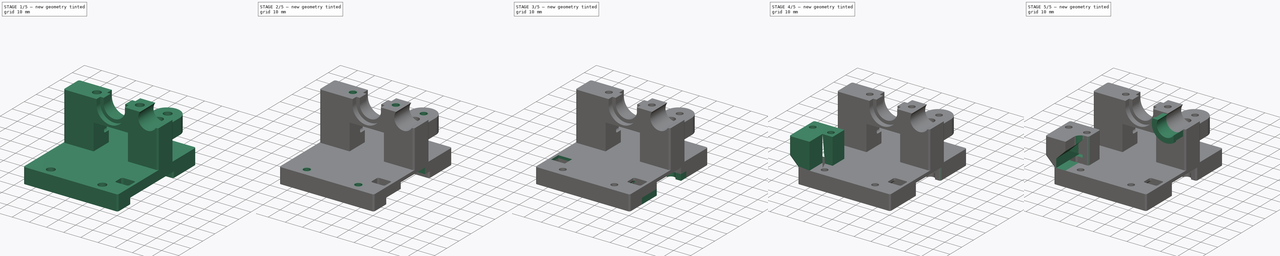
[diagram: build sequence overview — one tinted view per stage of 5, left to right]
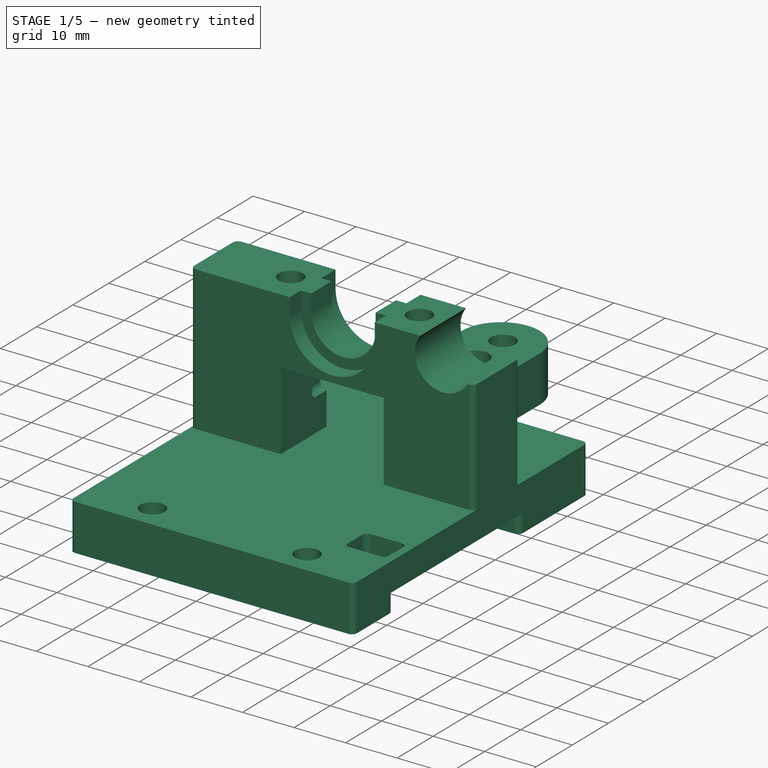
[diagram: stage 1 of 5 — iso view after this stage's code; geometry added in this stage tinted green]
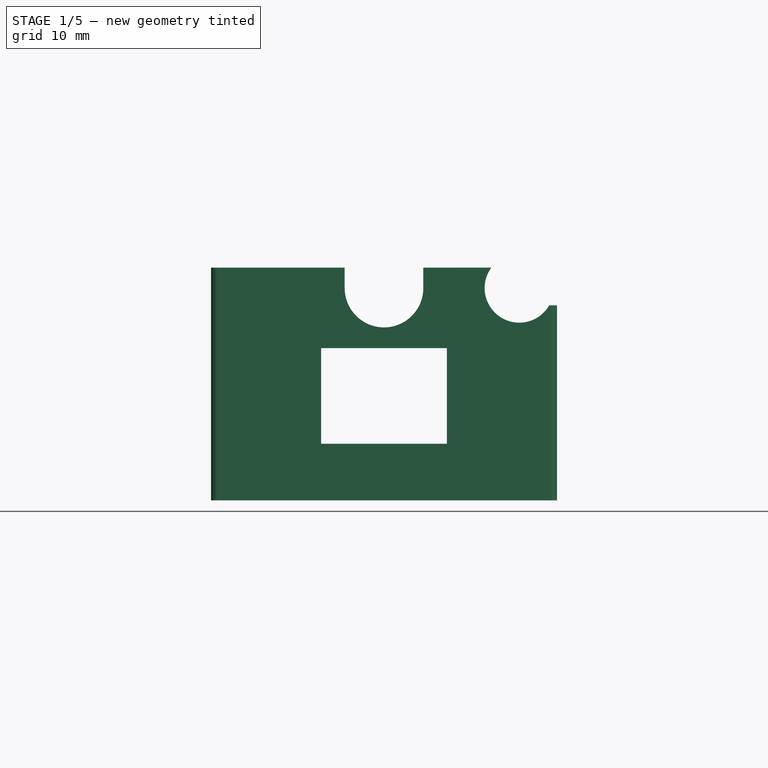
[diagram: stage 1 of 5 — front view after this stage's code; geometry added in this stage tinted green]
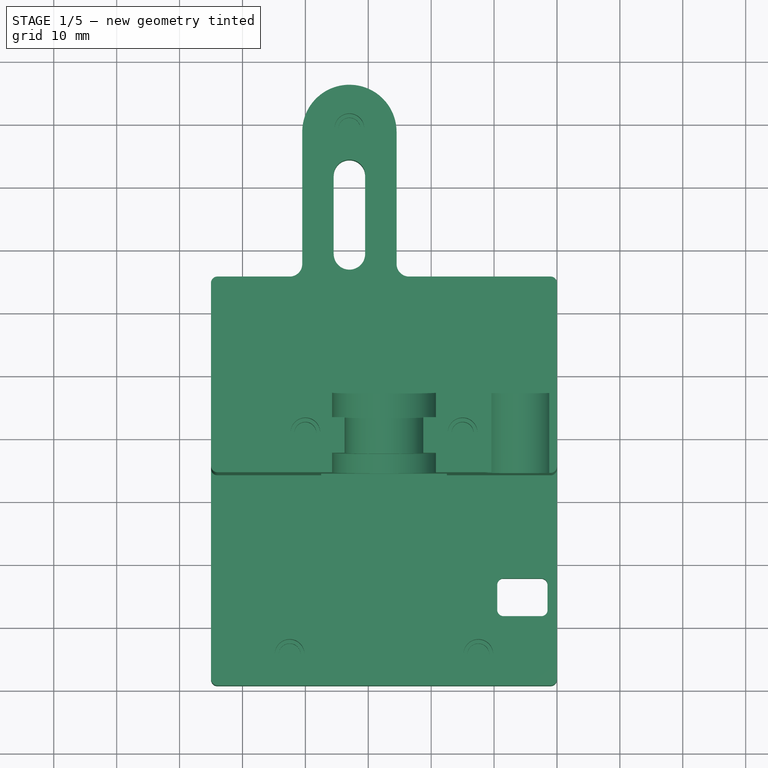
[diagram: stage 1 of 5 — top view after this stage's code; geometry added in this stage tinted green]
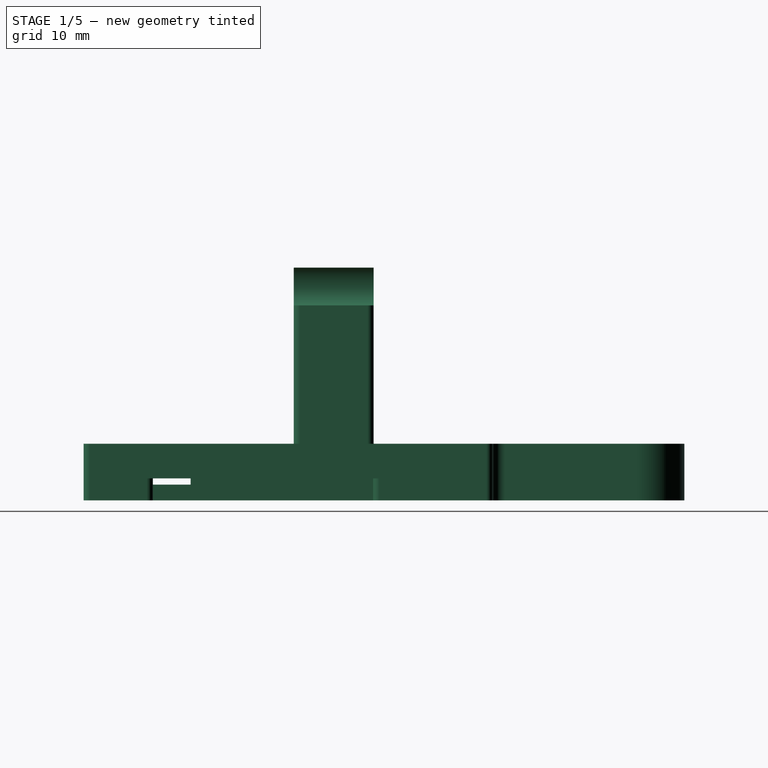
[diagram: stage 1 of 5 — right view after this stage's code; geometry added in this stage tinted green]
FCSTD DOCUMENT  (FreeCAD 0.17R13519 (Git))
Label: Corelia_0_Extruder_mount
License: All rights reserved
LicenseURL: http://en.wikipedia.org/wiki/All_rights_reserved
objects: PartDesign::Pad×17, Sketcher::SketchObject×11, PartDesign::Fillet×6, PartDesign::Pocket×5, PartDesign::Chamfer×3, Part::Feature×1, PartDesign::FeatureBase×1, PartDesign::Body×1
note: 67 computed .brp shape members not serialized (recipe doc carries the construction recipe); baked Part::Feature solids carry a one-line shape summary decoded from their .brp

FEATURE [Part::Feature] Part__Feature  label="Extruder Mount"
  shape: bbox 55.01 x 95.51 x 37.01 mm, 125 faces (baked)
FEATURE [PartDesign::FeatureBase] BaseFeature
  BaseFeature = -> Part__Feature
FEATURE [PartDesign::Pad] Pad
  BaseFeature = -> BaseFeature
  Length = 1.5
  Length2 = 100
  Profile = -> BaseFeature [Face75]
  Type = 0
FEATURE [PartDesign::Pad] Pad001
  BaseFeature = -> Pad
  Length = 5
  Length2 = 100
  Profile = -> Pad [Face112]
  Type = 0
FEATURE [PartDesign::Pad] Pad002
  BaseFeature = -> Pad001
  Length = 5
  Length2 = 100
  Profile = -> Pad001 [Face112]
  Type = 0
FEATURE [PartDesign::Pad] Pad003
  BaseFeature = -> Pad002
  Length = 5
  Length2 = 100
  Profile = -> Pad002 [Face108]
  Type = 0
FEATURE [PartDesign::Pad] Pad004
  BaseFeature = -> Pad003
  Length = 5
  Length2 = 100
  Profile = -> Pad003 [Face107]
  Type = 0
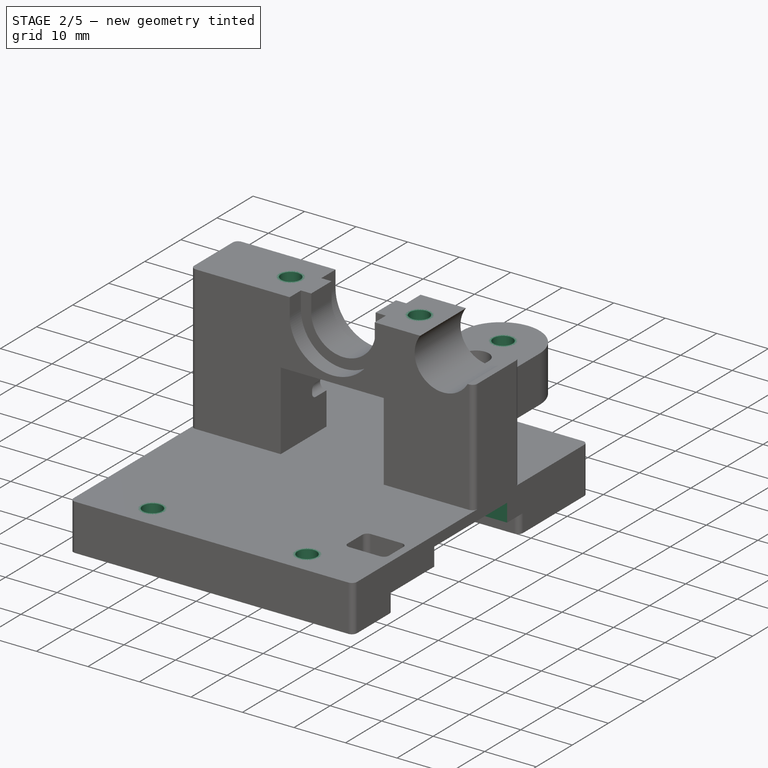
[diagram: stage 2 of 5 — iso view after this stage's code; geometry added in this stage tinted green]
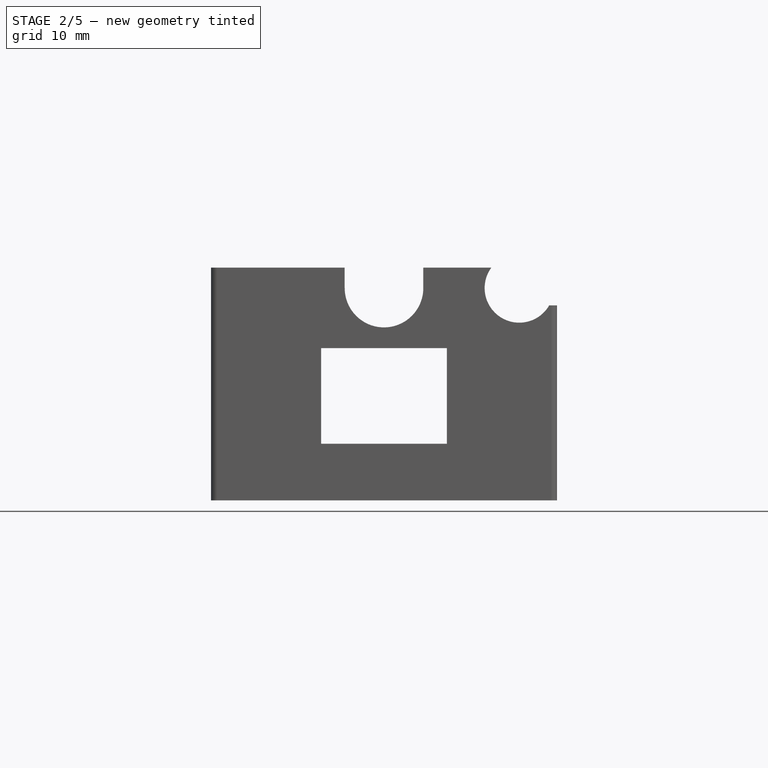
[diagram: stage 2 of 5 — front view after this stage's code; geometry added in this stage tinted green]
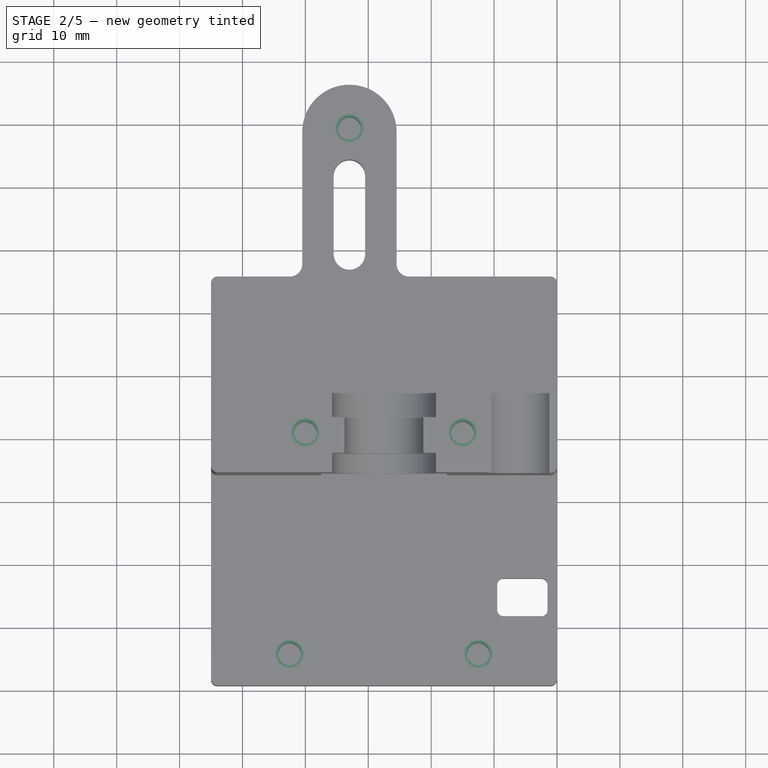
[diagram: stage 2 of 5 — top view after this stage's code; geometry added in this stage tinted green]
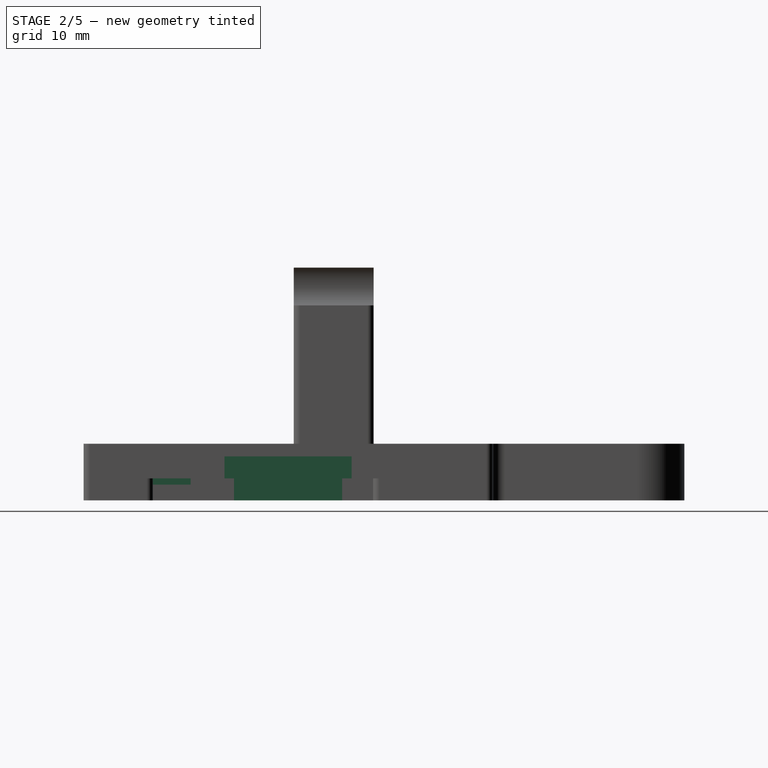
[diagram: stage 2 of 5 — right view after this stage's code; geometry added in this stage tinted green]
FEATURE [PartDesign::Pad] Pad005
  BaseFeature = -> Pad004
  Length = 1.5
  Length2 = 100
  Profile = -> Pad004 [Face106]
  Type = 0
FEATURE [Sketcher::SketchObject] Sketch
  ExternalGeometry = -> [Pad005]
  MapMode = 5
  Placement = pos=(0,0,0) rot=(1,0,0;3.14159rad)
  Support = -> [Pad005]
  sketch-geometry (2):
    g0: Circle CenterX=42.5 CenterY=-33.25 CenterZ=0 NormalX=0 NormalY=0 NormalZ=1 AngleXU=0 Radius=1.85
    g1: Circle CenterX=42.5 CenterY=-33.25 CenterZ=0 NormalX=0 NormalY=0 NormalZ=1 AngleXU=0 Radius=2.35
  constraints (4):
    c: Coincident(g0,g-3)
    c: Coincident(g1,g0)
    c: Radius(g0) = 1.85
    c: Radius(g1) = 2.35
FEATURE [PartDesign::Pad] Pad006
  BaseFeature = -> Pad005
  Length = 10
  Length2 = 100
  Profile = -> Sketch
  Type = 3
  UpToFace = -> Pad005 [Face102]
FEATURE [Sketcher::SketchObject] Sketch001
  ExternalGeometry = -> [Pad006]
  MapMode = 5
  Placement = pos=(0,0,37) rot=(0,0,1;0rad)
  Support = -> [Pad006]
  sketch-geometry (2):
    g0: Circle CenterX=30 CenterY=40.5 CenterZ=0 NormalX=0 NormalY=0 NormalZ=1 AngleXU=0 Radius=2.35
    g1: Circle CenterX=30 CenterY=40.5 CenterZ=0 NormalX=0 NormalY=0 NormalZ=1 AngleXU=0 Radius=1.85
  constraints (4):
    c: Coincident(g0,g-3)
    c: Coincident(g1,g0)
    c: Radius(g1) = 1.85
    c: Radius(g0) = 2.35
FEATURE [PartDesign::Pad] Pad007
  BaseFeature = -> Pad006
  Length = 10
  Length2 = 100
  Profile = -> Sketch001
  Type = 3
  UpToFace = -> Pad006 [Face104]
FEATURE [Sketcher::SketchObject] Sketch002
  ExternalGeometry = -> [Pad007]
  MapMode = 5
  Placement = pos=(0,0,37) rot=(0,0,1;0rad)
  Support = -> [Pad007]
  sketch-geometry (2):
    g0: Circle CenterX=55 CenterY=40.5 CenterZ=0 NormalX=0 NormalY=0 NormalZ=1 AngleXU=0 Radius=2.35
    g1: Circle CenterX=55 CenterY=40.5 CenterZ=0 NormalX=0 NormalY=0 NormalZ=1 AngleXU=0 Radius=1.85
  constraints (4):
    c: Coincident(g0,g-3)
    c: Coincident(g1,g0)
    c: Radius(g1) = 1.85
    c: Radius(g0) = 2.35
FEATURE [PartDesign::Pad] Pad008
  BaseFeature = -> Pad007
  Length = 10
  Length2 = 100
  Profile = -> Sketch002
  Type = 3
  UpToFace = -> Pad007 [Face105]
FEATURE [Sketcher::SketchObject] Sketch003
  ExternalGeometry = -> [Pad008]
  MapMode = 5
  Placement = pos=(0,0,9) rot=(0,0,1;0rad)
  Support = -> [Pad008]
  sketch-geometry (6):
    g0: Circle CenterX=27.5 CenterY=5.75 CenterZ=0 NormalX=0 NormalY=0 NormalZ=1 AngleXU=0 Radius=1.85
    g1: Circle CenterX=57.5 CenterY=5.75 CenterZ=0 NormalX=0 NormalY=0 NormalZ=1 AngleXU=0 Radius=1.85
    g2: Circle CenterX=37 CenterY=89.35 CenterZ=0 NormalX=0 NormalY=0 NormalZ=1 AngleXU=0 Radius=1.85
    g3: Circle CenterX=37 CenterY=89.35 CenterZ=0 NormalX=0 NormalY=0 NormalZ=1 AngleXU=0 Radius=2.35
    g4: Circle CenterX=27.5 CenterY=5.75 CenterZ=0 NormalX=0 NormalY=0 NormalZ=1 AngleXU=0 Radius=2.35
    g5: Circle CenterX=57.5 CenterY=5.75 CenterZ=0 NormalX=0 NormalY=0 NormalZ=1 AngleXU=0 Radius=2.35
  constraints (12):
    c: Coincident(g0,g-4)
    c: Coincident(g1,g-5)
    c: Coincident(g2,g-3)
    c: Equal(g2,g0)
    c: Equal(g0,g1)
    c: Radius(g2) = 1.85
    c: Coincident(g3,g2)
    c: Coincident(g4,g0)
    c: Coincident(g5,g1)
    c: Equal(g5,g4)
    c: Equal(g4,g3)
    c: Radius(g3) = 2.35
FEATURE [PartDesign::Pad] Pad009
  BaseFeature = -> Pad008
  Length = 5
  Length2 = 100
  Profile = -> Sketch003
  Reversed = true
  Type = 0
FEATURE [Sketcher::SketchObject] Sketch006
  MapMode = 5
  Placement = pos=(0,0,0) rot=(1,0,0;3.14159rad)
  sketch-geometry (16):
    g0: LineSegment StartX=26 StartY=-41.85 StartZ=0 EndX=26 EndY=-43.35 EndZ=0
    g1: LineSegment StartX=26 StartY=-43.35 StartZ=0 EndX=15 EndY=-43.35 EndZ=0
    g2: LineSegment StartX=15 StartY=-43.35 StartZ=0 EndX=15 EndY=-23.15 EndZ=0
    g3: LineSegment StartX=15 StartY=-23.15 StartZ=0 EndX=26 EndY=-23.15 EndZ=0
    g4: LineSegment StartX=26 StartY=-23.15 StartZ=0 EndX=26 EndY=-24.65 EndZ=0
    g5: LineSegment StartX=26 StartY=-24.65 StartZ=0 EndX=30 EndY=-24.65 EndZ=0
    g6: LineSegment StartX=26 StartY=-41.85 StartZ=0 EndX=30 EndY=-41.85 EndZ=0
    g7: LineSegment StartX=30 StartY=-41.85 StartZ=0 EndX=30 EndY=-24.65 EndZ=0
    g8: LineSegment StartX=70 StartY=-23.15 StartZ=0 EndX=59 EndY=-23.15 EndZ=0
    g9: LineSegment StartX=59 StartY=-23.15 StartZ=0 EndX=59 EndY=-24.65 EndZ=0
    g10: LineSegment StartX=59 StartY=-24.65 StartZ=0 EndX=55 EndY=-24.65 EndZ=0
    g11: LineSegment StartX=55 StartY=-24.65 StartZ=0 EndX=55 EndY=-41.85 EndZ=0
    g12: LineSegment StartX=55 StartY=-41.85 StartZ=0 EndX=59 EndY=-41.85 EndZ=0
    g13: LineSegment StartX=59 StartY=-41.85 StartZ=0 EndX=59 EndY=-43.35 EndZ=0
    g14: LineSegment StartX=59 StartY=-43.35 StartZ=0 EndX=70 EndY=-43.35 EndZ=0
    g15: LineSegment StartX=70 StartY=-43.35 StartZ=0 EndX=70 EndY=-23.15 EndZ=0
  constraints (48):
    c: Vertical(g0)
    c: Coincident(g0,g1)
    c: Horizontal(g1)
    c: Coincident(g1,g2)
    c: Vertical(g2)
    c: DistanceY(g2,g2) = 20.2
    c: Coincident(g2,g3)
    c: Horizontal(g3)
    c: Coincident(g3,g4)
    c: Vertical(g4)
    c: Coincident(g4,g5)
    c: Horizontal(g5)
    c: DistanceY(g4,g4) = 1.5
    c: Equal(g3,g1)
    c: Equal(g4,g0)
    c: Coincident(g0,g6)
    c: Horizontal(g6)
    c: Coincident(g6,g7)
    c: Coincident(g7,g5)
    c: Vertical(g7)
    c: DistanceX(g1,g6) = 15
    c: DistanceX(g3,g3) = 11
    c: DistanceX(g2) = 15
    c: DistanceY(g2) = -23.15
    c: Horizontal(g8)
    c: Coincident(g8,g9)
    c: Vertical(g9)
    c: Coincident(g9,g10)
    c: Horizontal(g10)
    c: Coincident(g10,g11)
    c: Vertical(g11)
    c: Coincident(g11,g12)
    c: Horizontal(g12)
    c: Coincident(g12,g13)
    c: Vertical(g13)
    c: Coincident(g13,g14)
    c: Horizontal(g14)
    c: Coincident(g14,g15)
    c: Coincident(g15,g8)
    c: Vertical(g15)
    c: Equal(g4,g9)
    c: Equal(g9,g13)
    c: Equal(g3,g8)
    c: Equal(g8,g14)
    c: Equal(g2,g15)
    c: Equal(g5,g10)
    c: PointOnObject(g10,g5)
    c: DistanceX(g5,g10) = 25
FEATURE [PartDesign::Pocket] Pocket
  BaseFeature = -> Pad009
  Length = 7
  Length2 = 100
  Profile = -> Sketch006
  Type = 0
FEATURE [PartDesign::Pad] Pad010
  BaseFeature = -> Pocket
  Length = 3.5
  Length2 = 100
  Profile = -> Pocket [Face51]
  Type = 0
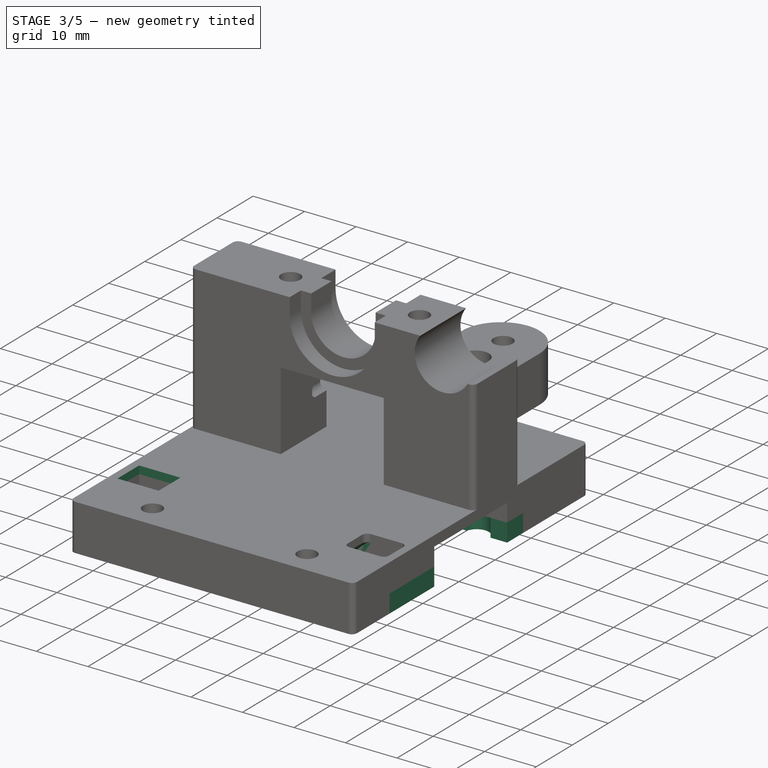
[diagram: stage 3 of 5 — iso view after this stage's code; geometry added in this stage tinted green]
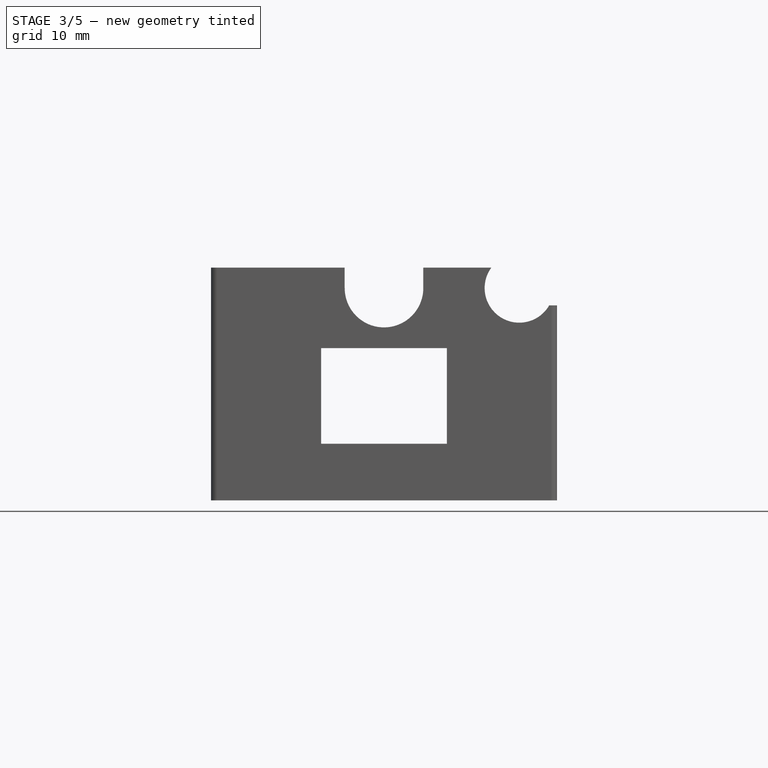
[diagram: stage 3 of 5 — front view after this stage's code; geometry added in this stage tinted green]
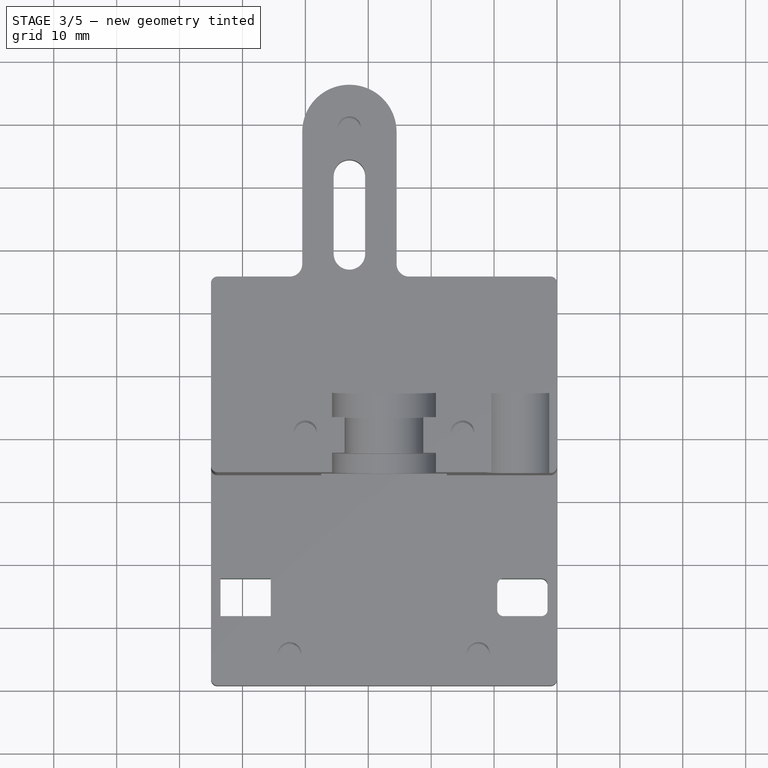
[diagram: stage 3 of 5 — top view after this stage's code; geometry added in this stage tinted green]
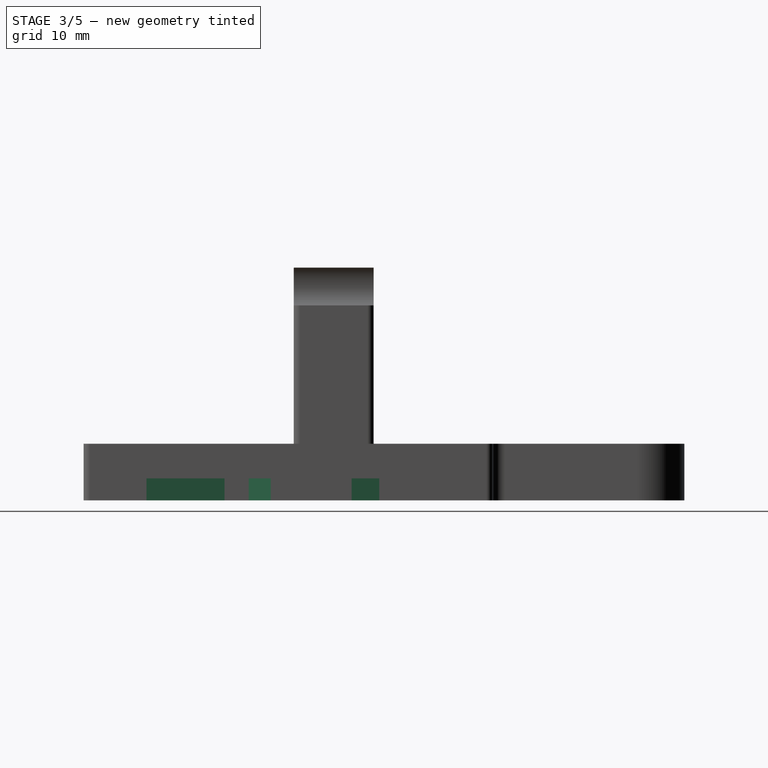
[diagram: stage 3 of 5 — right view after this stage's code; geometry added in this stage tinted green]
FEATURE [PartDesign::Pad] Pad011
  BaseFeature = -> Pad010
  Length = 3.5
  Length2 = 100
  Profile = -> Pad010 [Face51]
  Type = 0
FEATURE [PartDesign::Pad] Pad012
  BaseFeature = -> Pad011
  Length = 3.5
  Length2 = 100
  Profile = -> Pad011 [Face48]
  Type = 0
FEATURE [PartDesign::Pad] Pad013
  BaseFeature = -> Pad012
  Length = 3.5
  Length2 = 100
  Profile = -> Pad012 [Face54]
  Type = 0
FEATURE [PartDesign::Pocket] Pocket001
  BaseFeature = -> Pad013
  Length = 5
  Length2 = 100
  Profile = -> Pad013 [Face76]
  Type = 1
FEATURE [Sketcher::SketchObject] Sketch007
  MapMode = 5
  Placement = pos=(0,0,0) rot=(1,0,0;3.14159rad)
  Support = -> [Pocket001]
  sketch-geometry (14):
    g0: LineSegment StartX=30 StartY=-27 StartZ=0 EndX=31.75 EndY=-27 EndZ=0
    g1: LineSegment StartX=31.75 StartY=-27 StartZ=0 EndX=39.5 EndY=-19.25 EndZ=0
    g2: LineSegment StartX=39.5 StartY=-19.25 StartZ=0 EndX=39.5 EndY=-11.75 EndZ=0
    g3: LineSegment StartX=39.5 StartY=-11.75 StartZ=0 EndX=45.5 EndY=-11.75 EndZ=0
    g4: LineSegment StartX=45.5 StartY=-11.75 StartZ=0 EndX=45.5 EndY=-19.25 EndZ=0
    g5: LineSegment StartX=45.5 StartY=-19.25 StartZ=0 EndX=53.25 EndY=-27 EndZ=0
    g6: LineSegment StartX=53.25 StartY=-27 StartZ=0 EndX=55 EndY=-27 EndZ=0
    g7: LineSegment StartX=55 StartY=-27 StartZ=0 EndX=55 EndY=-30.5 EndZ=0
    g8: LineSegment StartX=55 StartY=-30.5 StartZ=0 EndX=51.5 EndY=-30.5 EndZ=0
    g9: LineSegment StartX=51.5 StartY=-30.5 StartZ=0 EndX=44.25 EndY=-23.25 EndZ=0
    g10: LineSegment StartX=44.25 StartY=-23.25 StartZ=0 EndX=40.75 EndY=-23.25 EndZ=0
    g11: LineSegment StartX=40.75 StartY=-23.25 StartZ=0 EndX=33.5 EndY=-30.5 EndZ=0
    g12: LineSegment StartX=33.5 StartY=-30.5 StartZ=0 EndX=30 EndY=-30.5 EndZ=0
    g13: LineSegment StartX=30 StartY=-30.5 StartZ=0 EndX=30 EndY=-27 EndZ=0
  constraints (42):
    c: Horizontal(g0)
    c: Coincident(g0,g1)
    c: Coincident(g1,g2)
    c: Vertical(g2)
    c: Coincident(g2,g3)
    c: Horizontal(g3)
    c: Coincident(g3,g4)
    c: Vertical(g4)
    c: Coincident(g4,g5)
    c: Coincident(g5,g6)
    c: Horizontal(g6)
    c: Coincident(g6,g7)
    c: Vertical(g7)
    c: Coincident(g7,g8)
    c: Horizontal(g8)
    c: Coincident(g8,g9)
    c: Coincident(g9,g10)
    c: Horizontal(g10)
    c: Coincident(g10,g11)
    c: Coincident(g11,g12)
    c: Horizontal(g12)
    c: Coincident(g12,g13)
    c: Coincident(g13,g0)
    c: Vertical(g13)
    c: Equal(g0,g6)
    c: Equal(g13,g7)
    c: Equal(g12,g8)
    c: Equal(g11,g9)
    c: Equal(g1,g5)
    c: Equal(g2,g4)
    c: PointOnObject(g8,g12)
    c: Parallel(g1,g11)
    c: DistanceY(g13,g13) = 3.5
    c: DistanceX(g3,g3) = 6
    c: Angle(g2,g1) = 2.35619
    c: DistanceX(g10,g10) = 3.5
    c: DistanceX(g0) = 30
    c: DistanceY(g0) = -27
    c: DistanceX(g8,g8) = 3.5
    c: DistanceY(g9,g4) = 4
    c: DistanceY(g7,g3) = 18.75
    c: DistanceX(g12,g7) = 25
FEATURE [PartDesign::Pocket] Pocket002
  BaseFeature = -> Pocket001
  Length = 3.5
  Length2 = 100
  Profile = -> Sketch007
  Type = 0
FEATURE [PartDesign::Chamfer] Chamfer
  Base = -> Pocket002 [Edge149]
  BaseFeature = -> Pocket002
  Size = 2
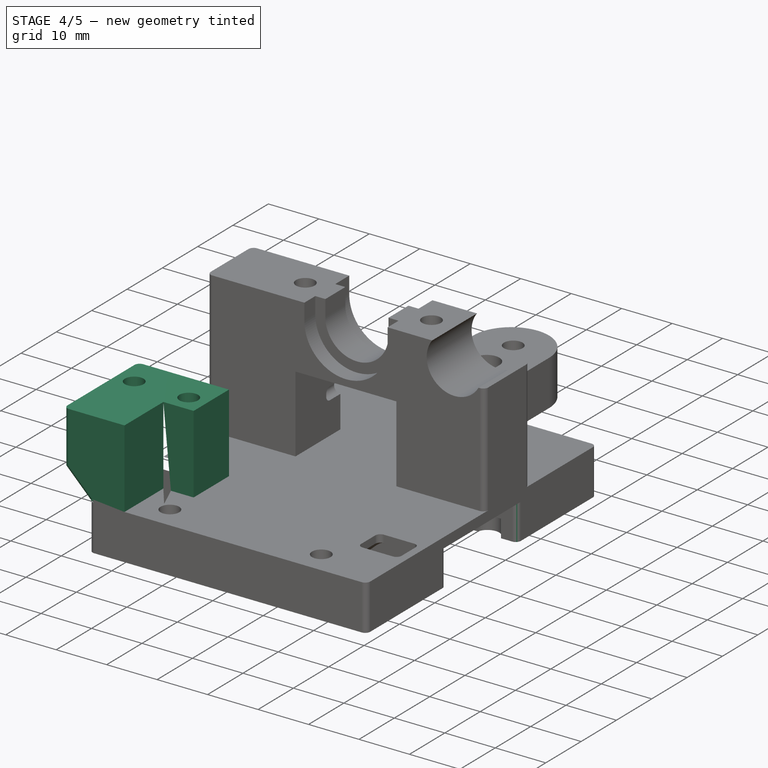
[diagram: stage 4 of 5 — iso view after this stage's code; geometry added in this stage tinted green]
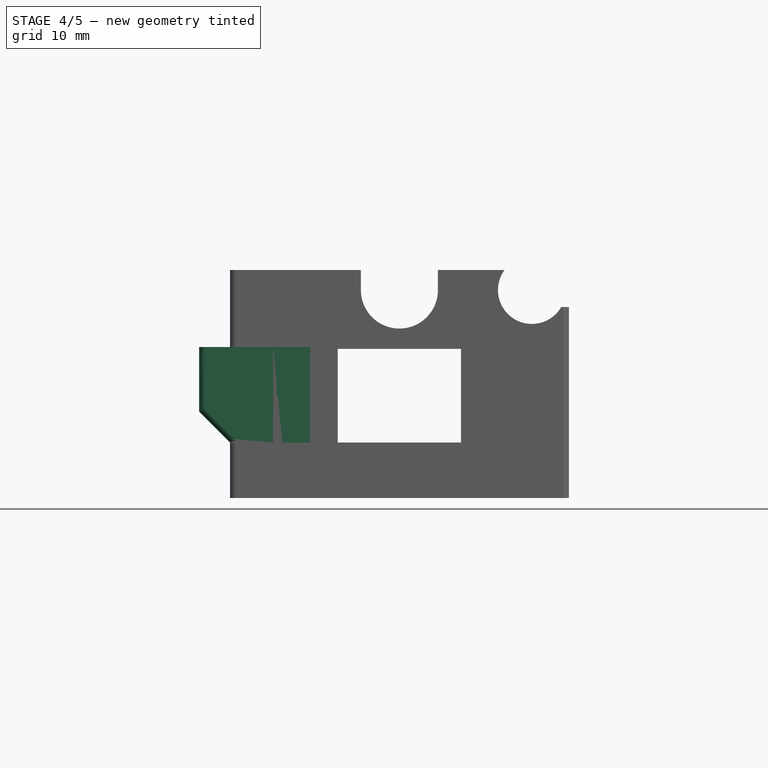
[diagram: stage 4 of 5 — front view after this stage's code; geometry added in this stage tinted green]
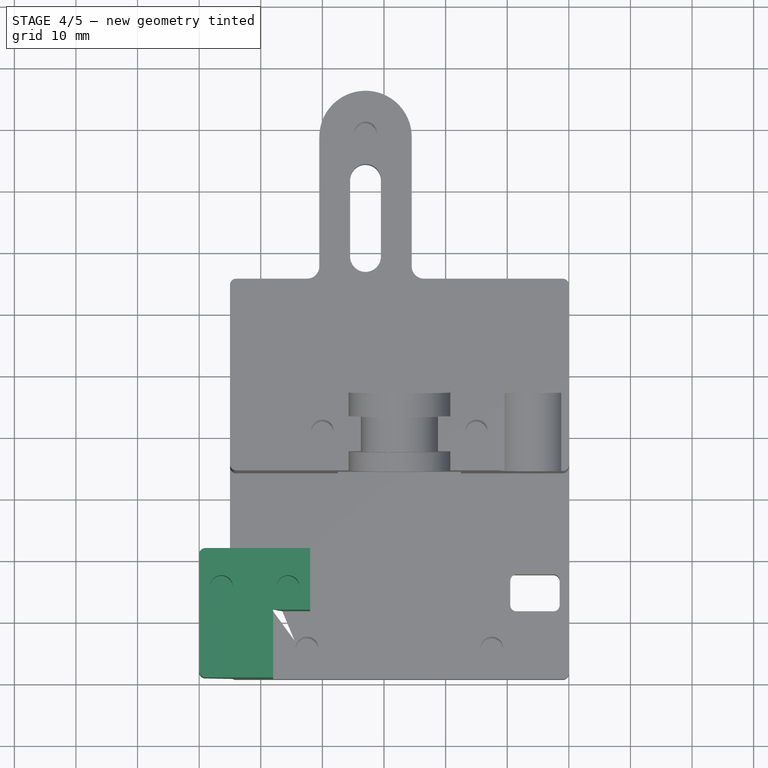
[diagram: stage 4 of 5 — top view after this stage's code; geometry added in this stage tinted green]
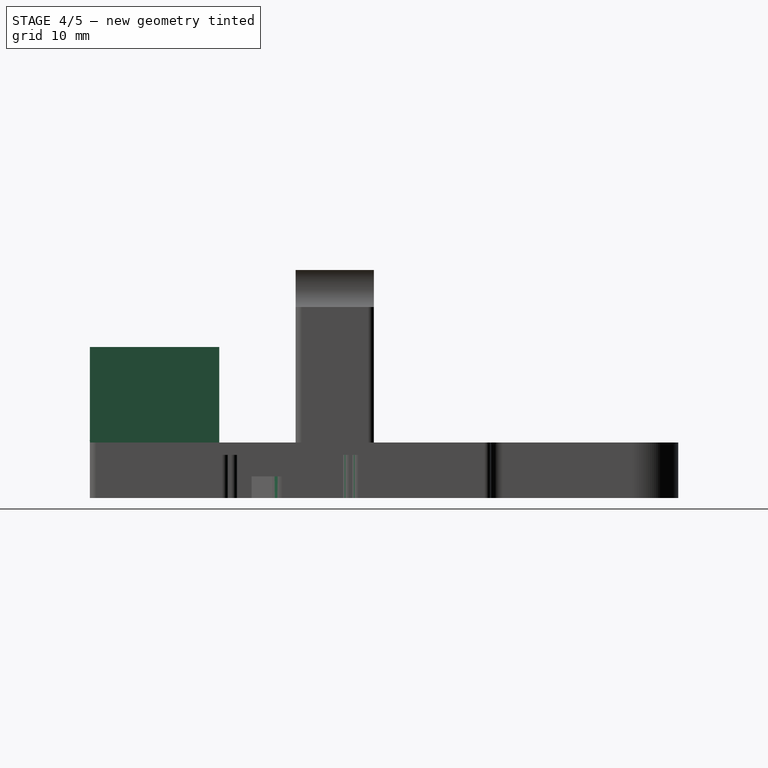
[diagram: stage 4 of 5 — right view after this stage's code; geometry added in this stage tinted green]
FEATURE [PartDesign::Fillet] Fillet
  Base = -> Chamfer [Edge199,Edge182,Edge213,Edge196,Edge64,Edge195,Edge68,Edge198,Edge240]
  BaseFeature = -> Chamfer
  Radius = 1
FEATURE [PartDesign::Fillet] Fillet001
  Base = -> Fillet [Edge379,Edge366,Edge407,Edge408,Edge409,Edge406,Edge440,Edge410,Edge404,Edge436]
  BaseFeature = -> Fillet
  Radius = 1.5
FEATURE [PartDesign::Fillet] Fillet002
  Base = -> Fillet001 [Edge54,Edge55,Edge176,Edge174,Edge116,Edge117,Edge269,Edge270,Edge77,Edge215,Edge73,Edge217,Edge134,Edge280,Edge138,Edge277]
  BaseFeature = -> Fillet001
  Radius = 1
FEATURE [Sketcher::SketchObject] Sketch009
  MapMode = 5
  Placement = pos=(0,0,9) rot=(0,0,1;0rad)
  sketch-geometry (6):
    g0: LineSegment StartX=10 StartY=21.75 StartZ=0 EndX=28 EndY=21.75 EndZ=0
    g1: LineSegment StartX=28 StartY=21.75 StartZ=0 EndX=28 EndY=11.75 EndZ=0
    g2: LineSegment StartX=10 StartY=0.75 StartZ=0 EndX=10 EndY=21.75 EndZ=0
    g3: LineSegment StartX=28 StartY=11.75 StartZ=0 EndX=22 EndY=11.75 EndZ=0
    g4: LineSegment StartX=22 StartY=11.75 StartZ=0 EndX=22 EndY=0.75 EndZ=0
    g5: LineSegment StartX=22 StartY=0.75 StartZ=0 EndX=10 EndY=0.75 EndZ=0
  constraints (18):
    c: Coincident(g0,g1)
    c: Coincident(g2,g0)
    c: Horizontal(g0)
    c: Vertical(g1)
    c: Vertical(g2)
    c: DistanceX(g0,g0) = 18
    c: DistanceY(g1,g1) = 10
    c: Horizontal(g3)
    c: Coincident(g3,g4)
    c: Vertical(g4)
    c: Coincident(g4,g5)
    c: Horizontal(g5)
    c: DistanceY(g1) = 11.75
    c: Coincident(g2,g5)
    c: DistanceY(g2) = 0.75
    c: DistanceX(g2) = 10
    c: DistanceX(g5,g5) = 12
    c: Coincident(g3,g1)
FEATURE [PartDesign::Pad] Pad014
  BaseFeature = -> Fillet002
  Length = 15.5
  Length2 = 100
  Profile = -> Sketch009
  Type = 0
FEATURE [Sketcher::SketchObject] Sketch010
  MapMode = 5
  Placement = pos=(0,0,24.5) rot=(0,0,1;0rad)
  Support = -> [Pad014]
  sketch-geometry (3):
    g0: Circle CenterX=13.6 CenterY=15.5 CenterZ=0 NormalX=0 NormalY=0 NormalZ=1 AngleXU=0 Radius=1.85
    g1: Circle CenterX=24.4 CenterY=15.5 CenterZ=0 NormalX=0 NormalY=0 NormalZ=1 AngleXU=0 Radius=1.85
    g2: LineSegment [constr] StartX=13.6 StartY=15.5 StartZ=0 EndX=24.4 EndY=15.5 EndZ=0
  constraints (8):
    c: Coincident(g2,g0)
    c: Coincident(g2,g1)
    c: Horizontal(g2)
    c: DistanceX(g2,g2) = 10.8
    c: DistanceX(g0) = 13.6
    c: DistanceY(g0) = 15.5
    c: Equal(g0,g1)
    c: Radius(g0) = 1.85
FEATURE [PartDesign::Pocket] Pocket003
  BaseFeature = -> Pad014
  Length = 8
  Length2 = 100
  Profile = -> Sketch010
  Type = 0
FEATURE [PartDesign::Chamfer] Chamfer001
  Base = -> Pocket003 [Edge299]
  BaseFeature = -> Pocket003
  Size = 4.99
FEATURE [PartDesign::Fillet] Fillet003
  Base = -> Chamfer001 [Edge16,Edge8,Edge6]
  BaseFeature = -> Chamfer001
  Radius = 1
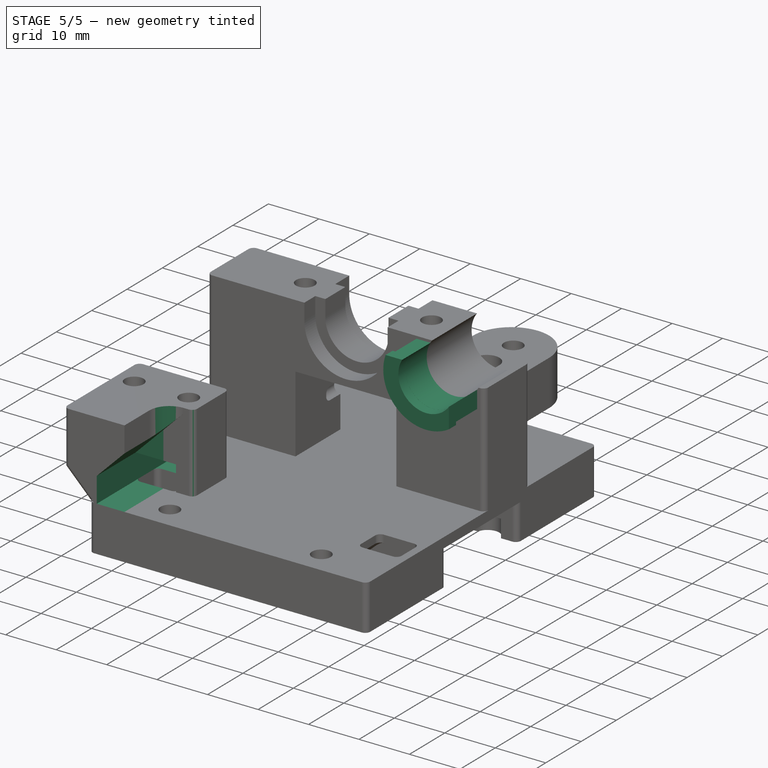
[diagram: stage 5 of 5 — iso view after this stage's code; geometry added in this stage tinted green]
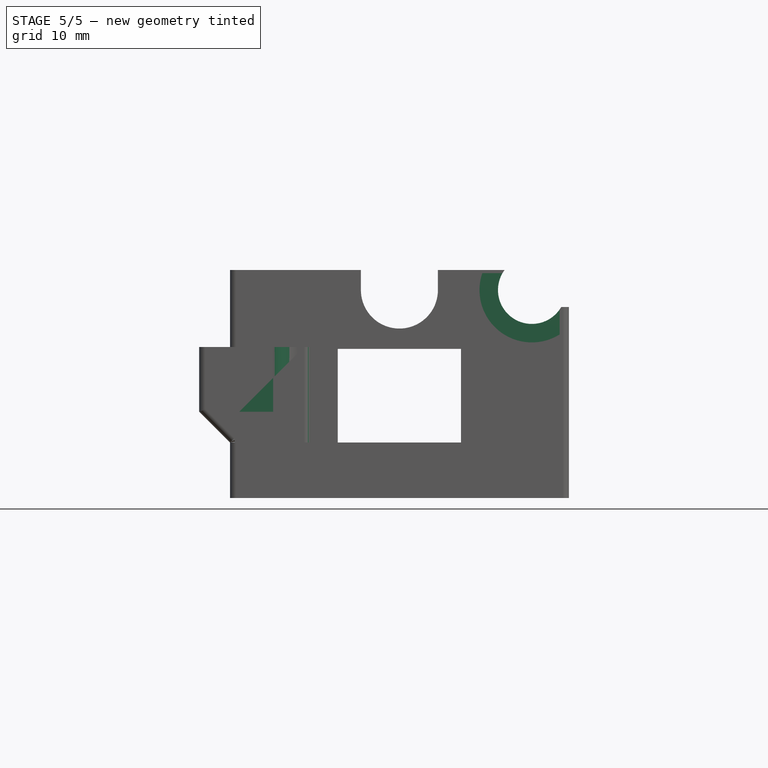
[diagram: stage 5 of 5 — front view after this stage's code; geometry added in this stage tinted green]
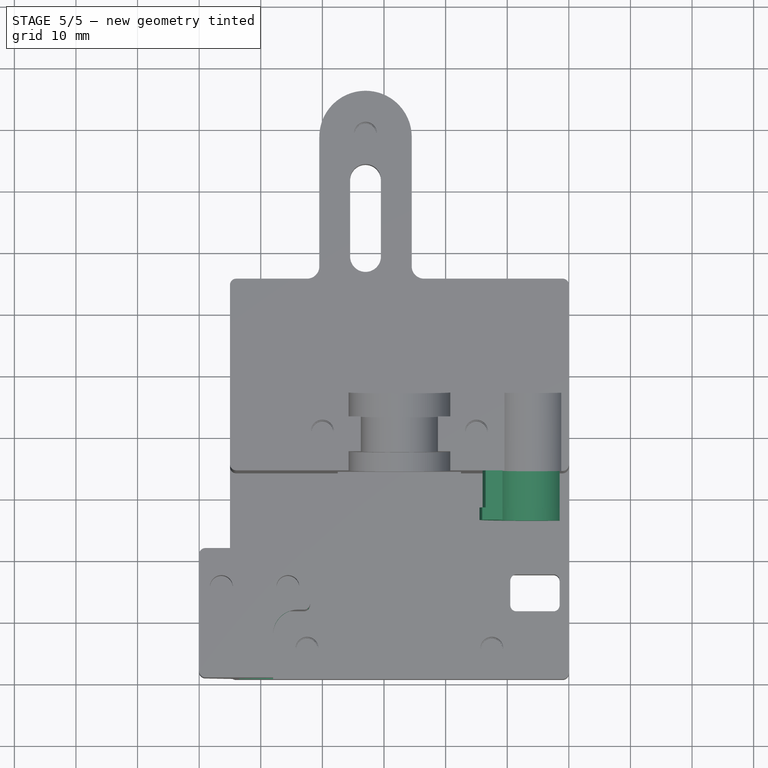
[diagram: stage 5 of 5 — top view after this stage's code; geometry added in this stage tinted green]
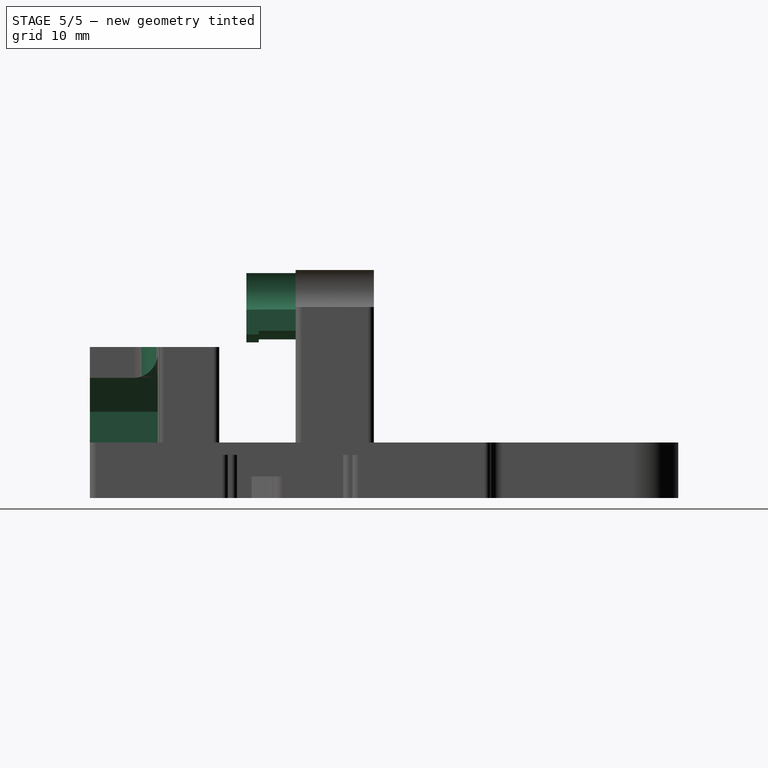
[diagram: stage 5 of 5 — right view after this stage's code; geometry added in this stage tinted green]
FEATURE [Sketcher::SketchObject] Sketch011
  MapMode = 5
  Placement = pos=(0,21.75,0) rot=(0,0.707107,0.707107;3.14159rad)
  Support = -> [Fillet003]
  sketch-geometry (4):
    g0: LineSegment StartX=-24.5 StartY=9 StartZ=0 EndX=-16.5 EndY=9 EndZ=0
    g1: LineSegment StartX=-16.5 StartY=9 StartZ=0 EndX=-16.5 EndY=14 EndZ=0
    g2: LineSegment StartX=-16.5 StartY=14 StartZ=0 EndX=-24.5 EndY=14 EndZ=0
    g3: LineSegment StartX=-24.5 StartY=14 StartZ=0 EndX=-24.5 EndY=9 EndZ=0
  constraints (12):
    c: Coincident(g0,g1)
    c: Coincident(g1,g2)
    c: Coincident(g2,g3)
    c: Coincident(g3,g0)
    c: Horizontal(g0)
    c: Horizontal(g2)
    c: Vertical(g1)
    c: Vertical(g3)
    c: DistanceX(g2,g2) = 8
    c: DistanceY(g3,g3) = 5
    c: DistanceX(g0) = -16.5
    c: DistanceY(g0) = 9
FEATURE [PartDesign::Pocket] Pocket004
  BaseFeature = -> Fillet003
  Length = 10
  Length2 = 100
  Profile = -> Sketch011
  Type = 1
FEATURE [PartDesign::Chamfer] Chamfer002
  Base = -> Pocket004 [Edge58]
  BaseFeature = -> Pocket004
  Size = 5.49
FEATURE [PartDesign::Fillet] Fillet004
  Base = -> Chamfer002 [Edge13]
  BaseFeature = -> Chamfer002
  Radius = 3.99
FEATURE [PartDesign::Fillet] Fillet005
  Base = -> Fillet004 [Edge28,Edge55]
  BaseFeature = -> Fillet004
  Radius = 1
FEATURE [Sketcher::SketchObject] Sketch012
  MapMode = 5
  Placement = pos=(0,34.15,0) rot=(1,0,0;1.5708rad)
  Support = -> [Fillet005]
  sketch-geometry (4):
    g0: ArcOfCircle CenterX=64 CenterY=33.75 CenterZ=0 NormalX=0 NormalY=0 NormalZ=1 AngleXU=0 Radius=5.5 StartAngle=2.61799 EndAngle=5.67063
    g1: ArcOfCircle CenterX=64 CenterY=33.75 CenterZ=0 NormalX=0 NormalY=0 NormalZ=1 AngleXU=0 Radius=8 StartAngle=2.79069 EndAngle=5.3098
    g2: LineSegment StartX=56.4875 StartY=36.5 StartZ=0 EndX=59.2369 EndY=36.5 EndZ=0
    g3: LineSegment StartX=68.5 StartY=30.5877 StartZ=0 EndX=68.5 EndY=27.1356 EndZ=0
  constraints (13):
    c: Coincident(g1,g0)
    c: DistanceX(g0) = 64
    c: DistanceY(g0) = 33.75
    c: Coincident(g2,g1)
    c: Coincident(g2,g0)
    c: Coincident(g3,g0)
    c: Coincident(g3,g1)
    c: Horizontal(g2)
    c: Vertical(g3)
    c: Radius(g0) = 5.5
    c: Radius(g1) = 8
    c: DistanceY(g1) = 36.5
    c: DistanceX(g1) = 68.5
FEATURE [PartDesign::Pad] Pad015
  BaseFeature = -> Fillet005
  Length = 6
  Length2 = 100
  Profile = -> Sketch012
  Type = 0
FEATURE [Sketcher::SketchObject] Sketch013
  MapMode = 5
  Placement = pos=(0,28.15,0) rot=(1,0,0;1.5708rad)
  Support = -> [Pad015]
  sketch-geometry (4):
    g0: ArcOfCircle CenterX=64 CenterY=33.75 CenterZ=0 NormalX=0 NormalY=0 NormalZ=1 AngleXU=0 Radius=5.51 StartAngle=2.61904 EndAngle=5.66805
    g1: ArcOfCircle CenterX=64 CenterY=33.75 CenterZ=0 NormalX=0 NormalY=0 NormalZ=1 AngleXU=0 Radius=8.5 StartAngle=2.81214 EndAngle=5.2703
    g2: LineSegment StartX=55.9571 StartY=36.5 StartZ=0 EndX=59.2253 EndY=36.5 EndZ=0
    g3: LineSegment StartX=68.5 StartY=30.5704 StartZ=0 EndX=68.5 EndY=26.5389 EndZ=0
  constraints (13):
    c: Coincident(g1,g0)
    c: DistanceX(g0) = 64
    c: DistanceY(g0) = 33.75
    c: Coincident(g2,g1)
    c: Coincident(g2,g0)
    c: Horizontal(g2)
    c: Coincident(g3,g0)
    c: Coincident(g3,g1)
    c: Vertical(g3)
    c: Radius(g0) = 5.51
    c: Radius(g1) = 8.5
    c: DistanceY(g1) = 36.5
    c: DistanceX(g1) = 68.5
FEATURE [PartDesign::Pad] Pad016
  BaseFeature = -> Pad015
  Length = 2
  Length2 = 100
  Profile = -> Sketch013
  Type = 0
FEATURE [PartDesign::Body] Body
  BaseFeature = -> Part__Feature
  Group = -> [BaseFeature,Pad,Pad001,Pad002,Pad003,Pad004,Pad005,Sketch,Pad006,Sketch001,Pad007,Sketch002,Pad008,Sketch003,Pad009,Sketch006,Pocket,Pad010,Pad011,Pad012,Pad013,Pocket001,Sketch007,Pocket002,Chamfer,Fillet,Fillet001,Fillet002,Sketch009,Pad014,Sketch010,Pocket003,Chamfer001,Fillet003,Sketch011,Pocket004,Chamfer002,Fillet004,Fillet005,Sketch012,Pad015,Sketch013,Pad016]
  Origin = -> Origin
  Tip = -> Pad016
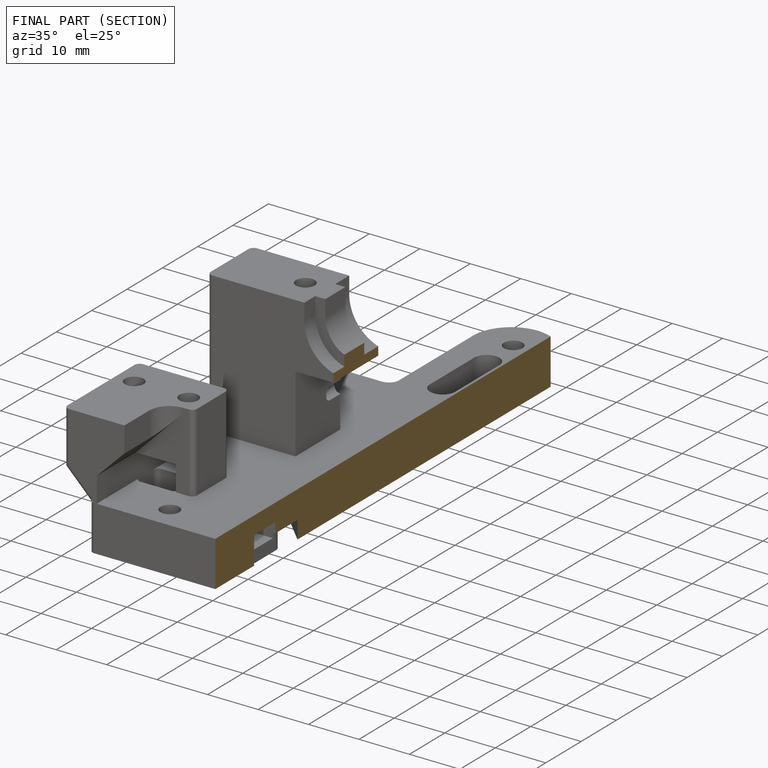
[diagram: finished part — half-section view (interior)]
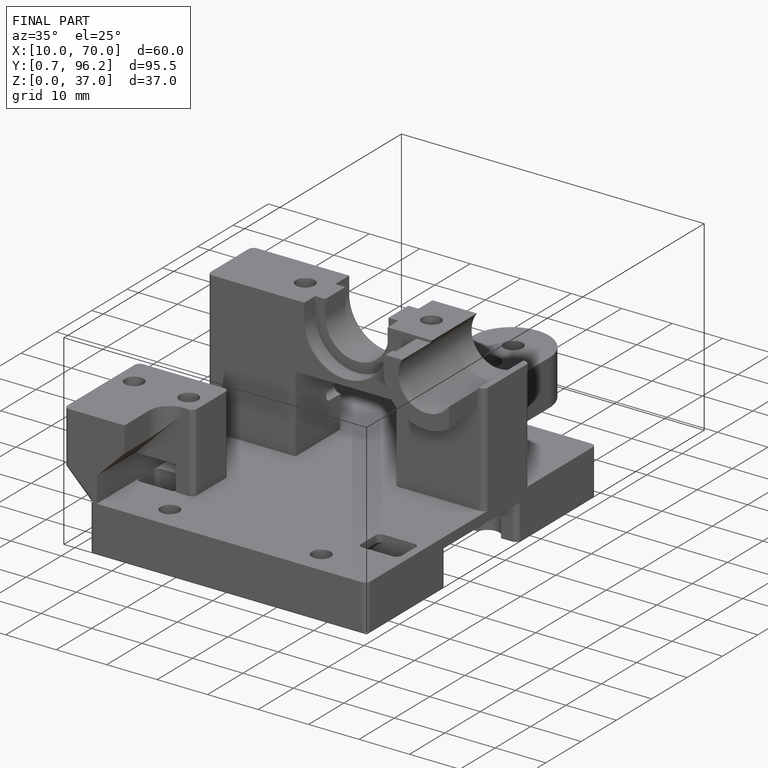
[diagram: finished part — iso view with bounding-box wireframe]
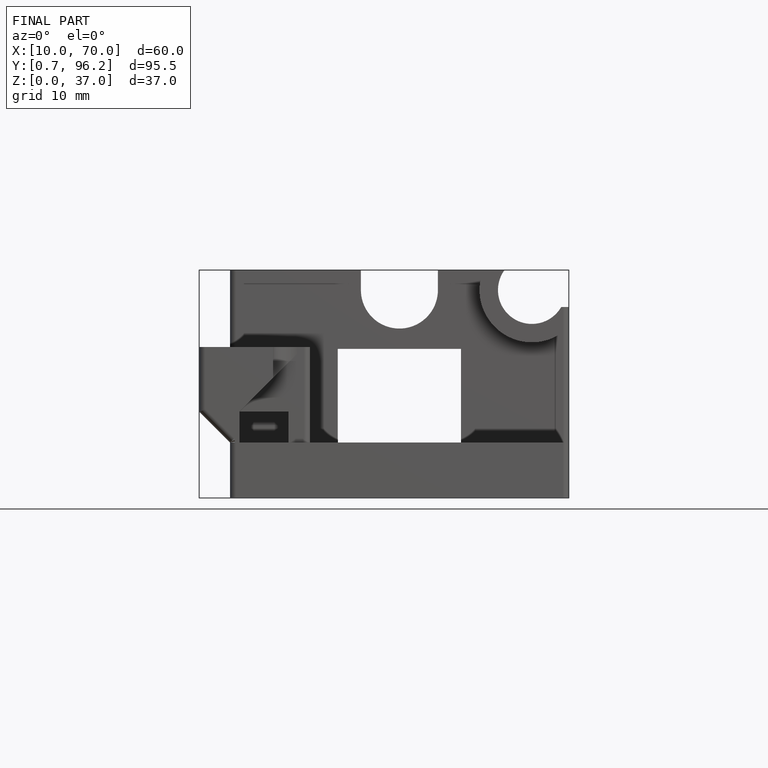
[diagram: finished part — front view with bounding-box wireframe]
